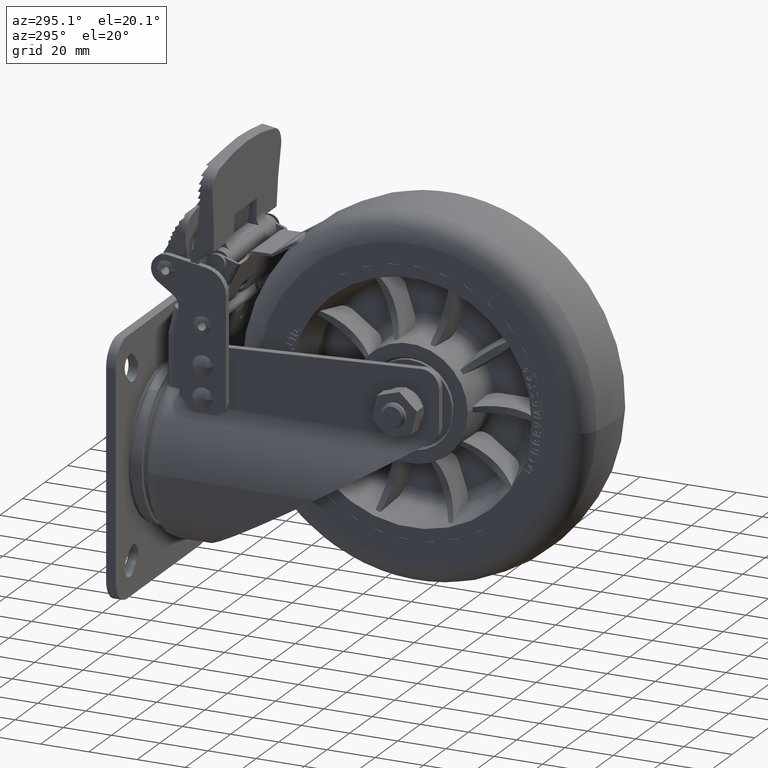
[diagram: clean part render]
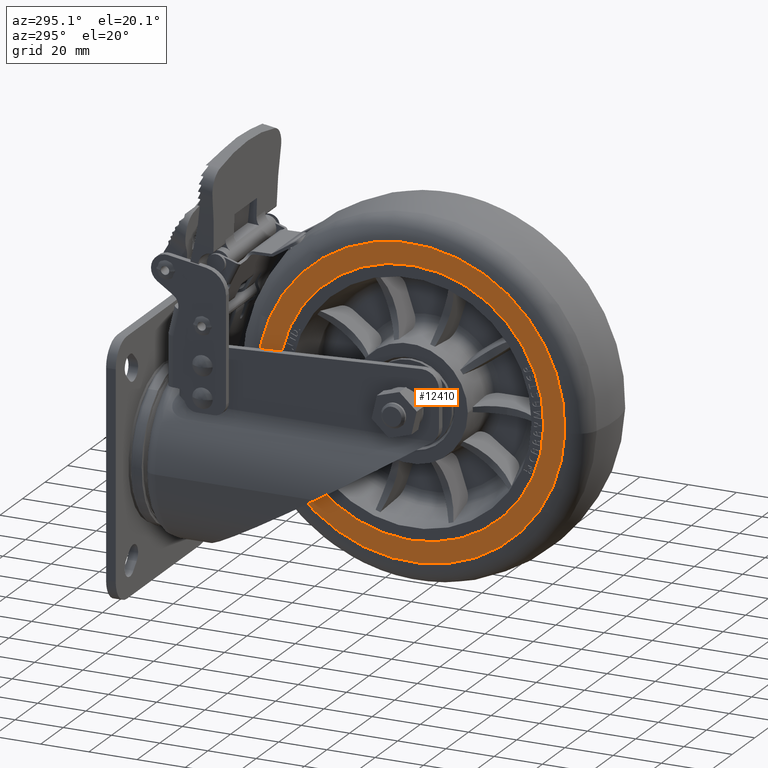
[diagram: same view with one face highlighted and labeled with its STEP entity id]
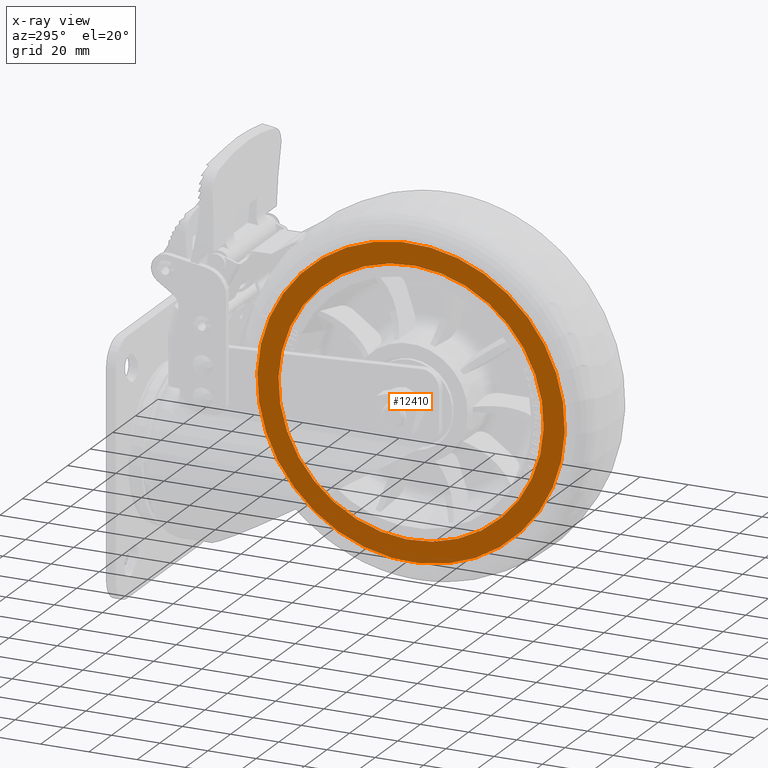
[diagram: x-ray of the same camera — body ghosted, the highlighted face saturated]
A machine part, auxiliary view. The second image highlights one B-rep face of the part: STEP entity #12410.
The next image is the same camera in x-ray: the body ghosted, the highlighted face saturated — about 0% of this face is hidden behind the body in this view.
In plain terms, the highlighted planar face has unit normal (1, 0, 0).
Its self-contained STEP definition (entity closure, byte-faithful):
#2705 = CARTESIAN_POINT ( 'NONE',  ( -19.99999999999560500, -162.4430553676045000, 37.06485202074660600 ) ) ;
#2792 = AXIS2_PLACEMENT_3D ( 'NONE', #48583, #6515, #55566 ) ;
#5546 = ORIENTED_EDGE ( 'NONE', *, *, #17925, .T. ) ;
#6515 = DIRECTION ( 'NONE',  ( -1.000000000000000000, -1.733809942677952500E-016, -5.629050342756985000E-018 ) ) ;
#7165 = AXIS2_PLACEMENT_3D ( 'NONE', #13086, #62124, #20220 ) ;
#7484 = CIRCLE ( 'NONE', #20209, 63.79215610874229000 ) ;
#9899 = CARTESIAN_POINT ( 'NONE',  ( -19.99999999999560500, -153.6555293497586900, 37.35015103262295400 ) ) ;
#10903 = AXIS2_PLACEMENT_3D ( 'NONE', #12624, #14189, #12320 ) ;
#11409 = VERTEX_POINT ( 'NONE', #9899 ) ;
#11999 = CARTESIAN_POINT ( 'NONE',  ( -19.99999999999562700, -34.92593110211118600, 41.20486929937279500 ) ) ;
#12320 = DIRECTION ( 'NONE',  ( -1.734723475976805600E-016, 0.9994733839072883500, 0.03244926595339536800 ) ) ;
#12410 = ADVANCED_FACE ( 'NONE', ( #13475, #62800 ), #12429, .F. ) ;
#12429 = PLANE ( 'NONE',  #10903 ) ;
#12624 = CARTESIAN_POINT ( 'NONE',  ( -19.99999999999562300, -43.71345711995696300, 40.91957028749644100 ) ) ;
#13086 = CARTESIAN_POINT ( 'NONE',  ( -19.99999999999561600, -98.68449323485784000, 39.13486066005969400 ) ) ;
#13475 = FACE_OUTER_BOUND ( 'NONE', #44213, .T. ) ;
#14189 = DIRECTION ( 'NONE',  ( 1.000000000000000000, 1.733809942677951500E-016, 5.629050342756981900E-018 ) ) ;
#17925 = EDGE_CURVE ( 'NONE', #47675, #57246, #61832, .T. ) ;
#20209 = AXIS2_PLACEMENT_3D ( 'NONE', #63788, #21916, #70786 ) ;
#20220 = DIRECTION ( 'NONE',  ( -1.631601985378645700E-016, 0.9994733839072883500, 0.03244926595339536800 ) ) ;
#21916 = DIRECTION ( 'NONE',  ( -1.000000000000000000, -1.733809942677952500E-016, -5.629050342756985000E-018 ) ) ;
#24778 = CIRCLE ( 'NONE', #87184, 55.00000000000000700 ) ;
#25001 = EDGE_LOOP ( 'NONE', ( #66002, #58710 ) ) ;
#27295 = CIRCLE ( 'NONE', #2792, 55.00000000000000700 ) ;
#36258 = DIRECTION ( 'NONE',  ( -1.000000000000000000, -1.733809942677952500E-016, -5.629050342756985000E-018 ) ) ;
#41185 = EDGE_CURVE ( 'NONE', #57246, #47675, #7484, .T. ) ;
#44213 = EDGE_LOOP ( 'NONE', ( #64348, #5546 ) ) ;
#47675 = VERTEX_POINT ( 'NONE', #2705 ) ;
#48583 = CARTESIAN_POINT ( 'NONE',  ( -19.99999999999561600, -98.68449323485784000, 39.13486066005969400 ) ) ;
#55566 = DIRECTION ( 'NONE',  ( 1.892425610156516600E-016, -0.9994733839072883500, -0.03244926595339534000 ) ) ;
#57246 = VERTEX_POINT ( 'NONE', #11999 ) ;
#57626 = EDGE_CURVE ( 'NONE', #59256, #11409, #27295, .T. ) ;
#58710 = ORIENTED_EDGE ( 'NONE', *, *, #57626, .F. ) ;
#59256 = VERTEX_POINT ( 'NONE', #89248 ) ;
#61832 = CIRCLE ( 'NONE', #7165, 63.79215610874229000 ) ;
#62124 = DIRECTION ( 'NONE',  ( -1.000000000000000000, -1.733809942677952500E-016, -5.629050342756985000E-018 ) ) ;
#62800 = FACE_BOUND ( 'NONE', #25001, .T. ) ;
#63788 = CARTESIAN_POINT ( 'NONE',  ( -19.99999999999561600, -98.68449323485784000, 39.13486066005969400 ) ) ;
#64348 = ORIENTED_EDGE ( 'NONE', *, *, #41185, .T. ) ;
#66002 = ORIENTED_EDGE ( 'NONE', *, *, #89789, .F. ) ;
#70786 = DIRECTION ( 'NONE',  ( -1.631601985378645700E-016, 0.9994733839072883500, 0.03244926595339536800 ) ) ;
#78113 = CARTESIAN_POINT ( 'NONE',  ( -19.99999999999561600, -98.68449323485784000, 39.13486066005969400 ) ) ;
#85203 = DIRECTION ( 'NONE',  ( 1.892425610156516600E-016, -0.9994733839072883500, -0.03244926595339534000 ) ) ;
#87184 = AXIS2_PLACEMENT_3D ( 'NONE', #78113, #36258, #85203 ) ;
#89248 = CARTESIAN_POINT ( 'NONE',  ( -19.99999999999562700, -43.71345711995697800, 40.91957028749644800 ) ) ;
#89789 = EDGE_CURVE ( 'NONE', #11409, #59256, #24778, .T. ) ;